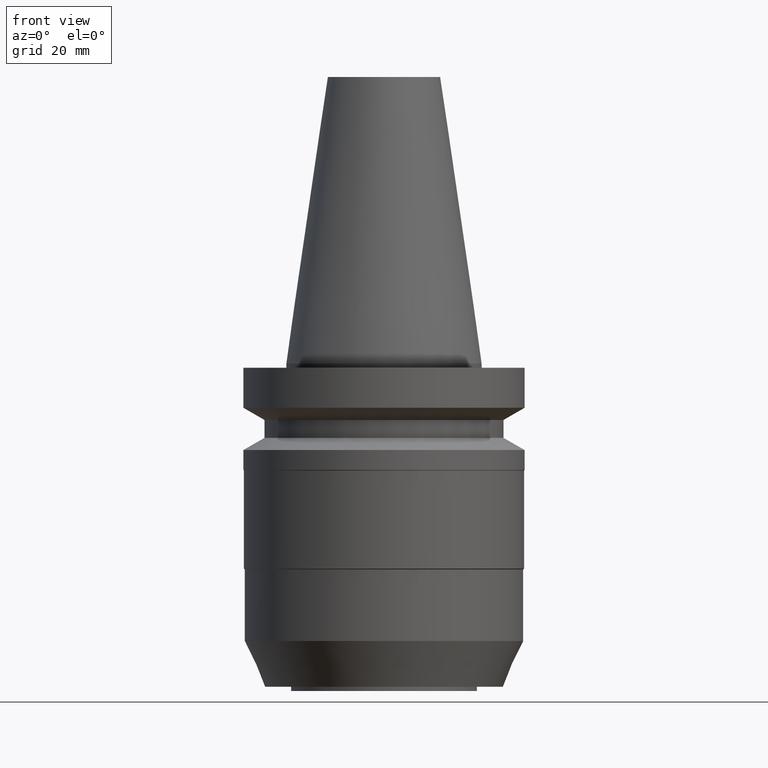
[diagram: clean part render]
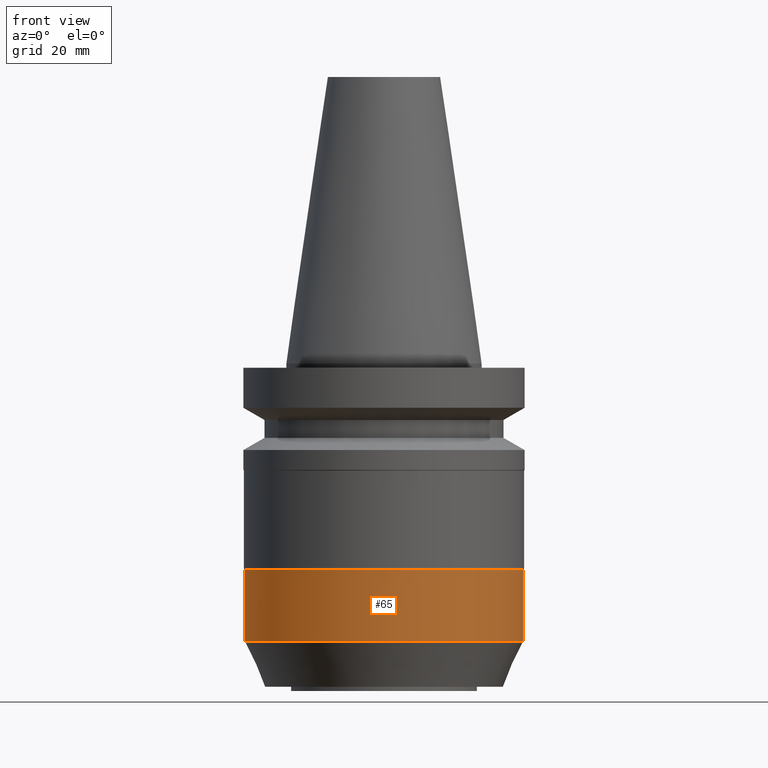
[diagram: same view with one face highlighted and labeled with its STEP entity id]
A machine part, front view. The second image highlights one B-rep face of the part: STEP entity #65.
In plain terms, the highlighted cylindrical surface (bore or boss wall) has radius 49.5 mm, axis along (0, 0, -1).
Its self-contained STEP definition (entity closure, byte-faithful):
#65=ADVANCED_FACE('Unnamed[1]',(#171,#172),#173,.T.);
#85=EDGE_CURVE('Unnamed[1]',#204,#204,#205,.T.);
#106=EDGE_CURVE('Unnamed[1]',#236,#236,#237,.T.);
#171=FACE_BOUND('',#314,.T.);
#172=FACE_BOUND('',#315,.T.);
#173=CYLINDRICAL_SURFACE('',#316,49.5);
#204=VERTEX_POINT('',#355);
#205=CIRCLE('',#356,49.4999999999999);
#236=VERTEX_POINT('',#394);
#237=CIRCLE('',#395,49.5);
#314=EDGE_LOOP('',(#480));
#315=EDGE_LOOP('',(#481));
#316=AXIS2_PLACEMENT_3D('',#482,#483,#484);
#355=CARTESIAN_POINT('',(4.4791456678817E-015,49.4999999999999,-73.1500000000042));
#356=AXIS2_PLACEMENT_3D('',#518,#519,#520);
#394=CARTESIAN_POINT('',(6.03401890607593E-015,49.5,-98.543007016832));
#395=AXIS2_PLACEMENT_3D('',#552,#553,#554);
#480=ORIENTED_EDGE('',*,*,#106,.F.);
#481=ORIENTED_EDGE('',*,*,#85,.T.);
#482=CARTESIAN_POINT('',(5.25658228697881E-015,1.05131645739576E-014,-85.8465035084181));
#483=DIRECTION('',(6.12323399573677E-017,1.22464679914735E-016,-1.0));
#484=DIRECTION('',(-1.23259516440783E-032,1.0,1.22464679914735E-016));
#518=CARTESIAN_POINT('',(4.4791456678817E-015,8.9582913357634E-015,-73.1500000000042));
#519=DIRECTION('',(6.12323399573676E-017,1.22464679914735E-016,-1.0));
#520=DIRECTION('',(-1.23259516440783E-032,1.0,1.22464679914735E-016));
#552=CARTESIAN_POINT('',(6.03401890607593E-015,1.20680378121518E-014,-98.543007016832));
#553=DIRECTION('',(6.12323399573677E-017,1.22464679914735E-016,-1.0));
#554=DIRECTION('',(-1.23259516440783E-032,1.0,1.22464679914735E-016));